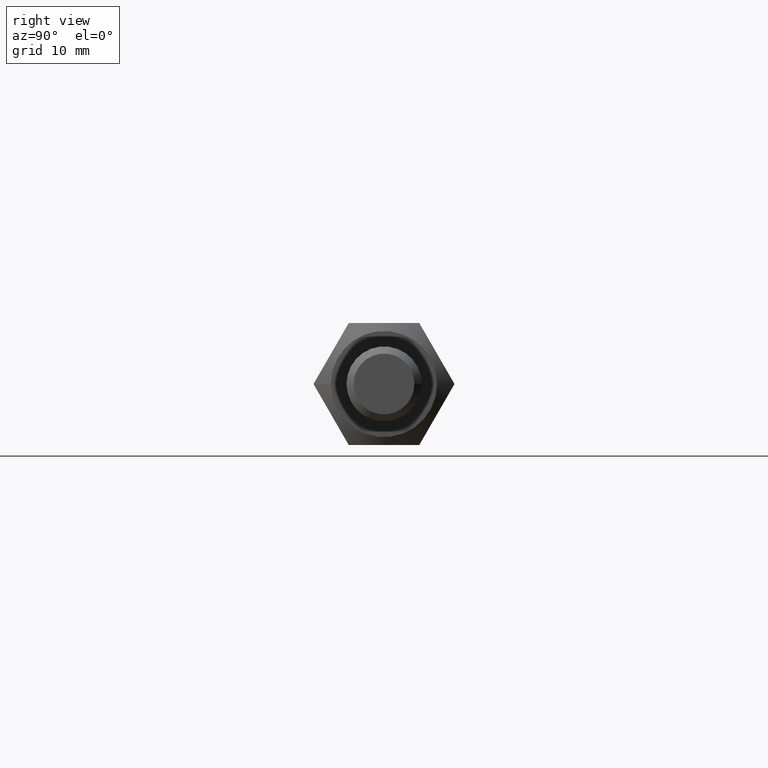
[diagram: clean part render]
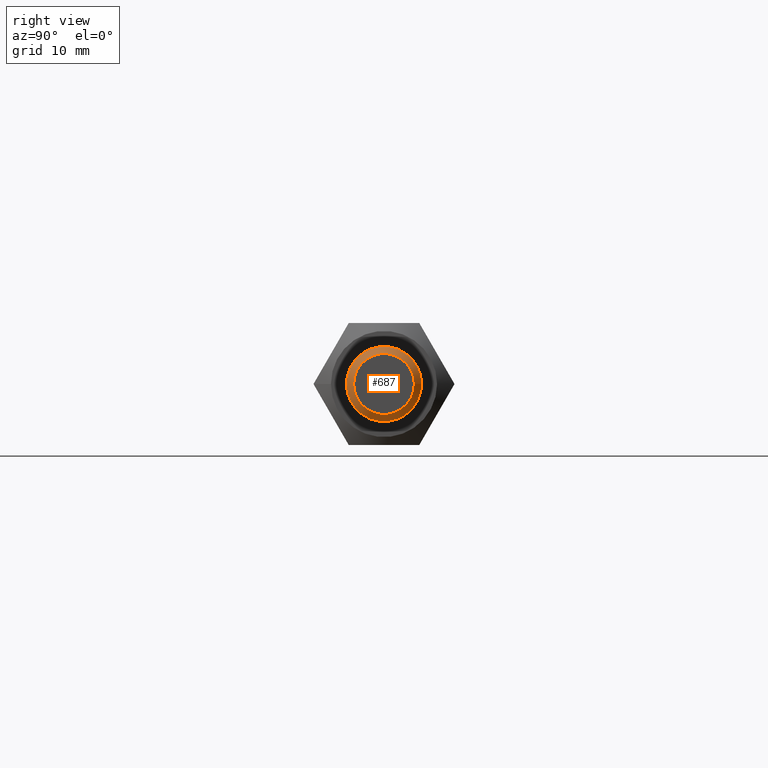
[diagram: same view with one face highlighted and labeled with its STEP entity id]
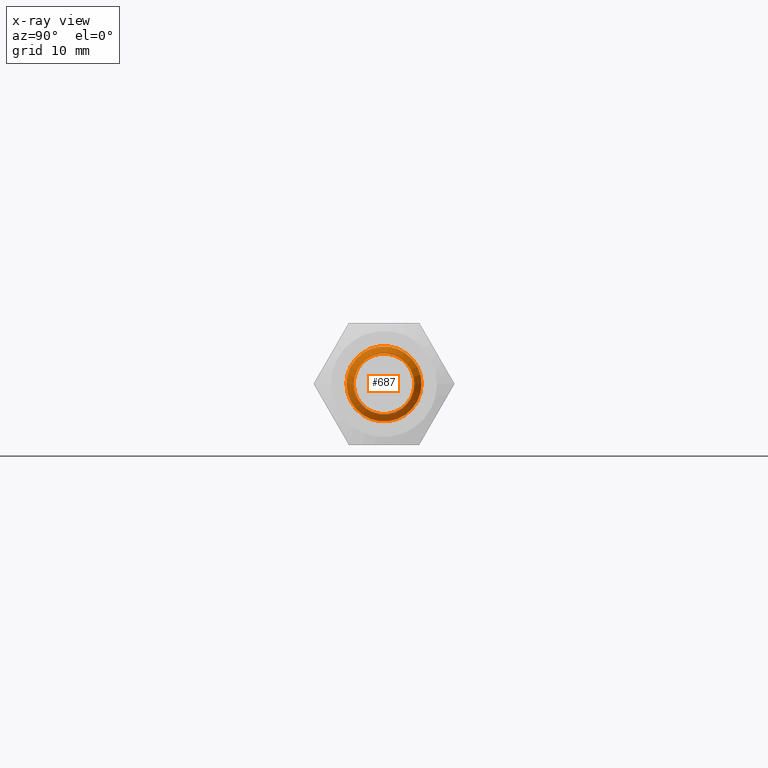
[diagram: x-ray of the same camera — body ghosted, the highlighted face saturated]
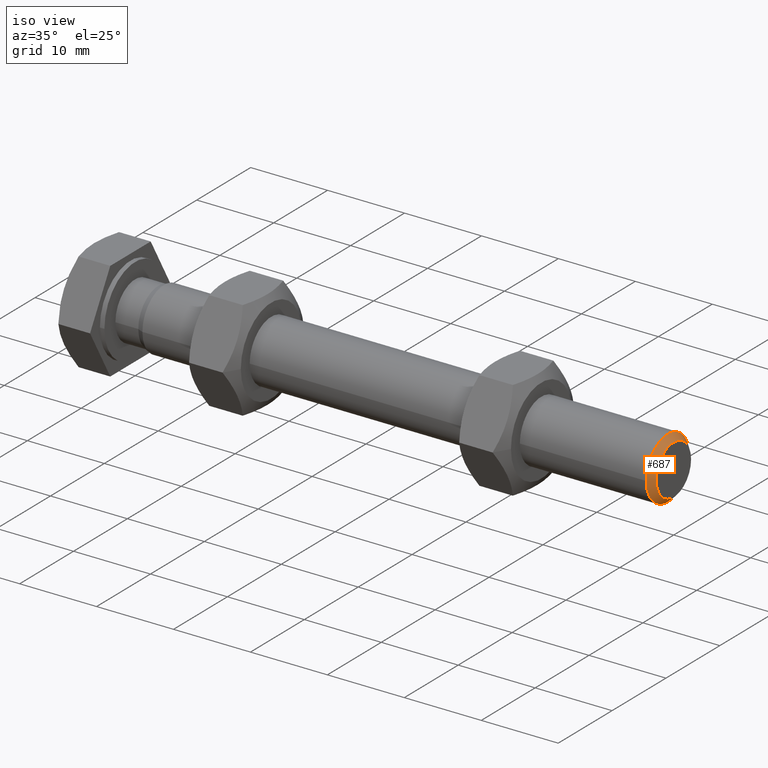
[diagram: same view with one face highlighted and labeled with its STEP entity id]
A machine part, right view. The second image highlights one B-rep face of the part: STEP entity #687.
The next image is the same camera in x-ray: the body ghosted, the highlighted face saturated — about 0% of this face is hidden behind the body in this view.
A second angle (iso view) of the same face is appended — the face is thin or edge-on in the first view.
In plain terms, the highlighted conical surface has half-angle 44.996 deg.
Its self-contained STEP definition (entity closure, byte-faithful):
#92=FACE_OUTER_BOUND('',#139,.T.);
#139=EDGE_LOOP('',(#465,#466,#467,#468,#469));
#192=LINE('',#1032,#231);
#231=VECTOR('',#842,3.61659375000001);
#270=CIRCLE('',#760,4.);
#271=CIRCLE('',#761,4.);
#272=CIRCLE('',#762,3.23318750000001);
#298=VERTEX_POINT('',#1027);
#299=VERTEX_POINT('',#1028);
#300=VERTEX_POINT('',#1031);
#362=EDGE_CURVE('',#298,#299,#270,.T.);
#363=EDGE_CURVE('',#299,#298,#271,.T.);
#364=EDGE_CURVE('',#298,#300,#192,.T.);
#365=EDGE_CURVE('',#300,#300,#272,.T.);
#465=ORIENTED_EDGE('',*,*,#362,.T.);
#466=ORIENTED_EDGE('',*,*,#363,.T.);
#467=ORIENTED_EDGE('',*,*,#364,.T.);
#468=ORIENTED_EDGE('',*,*,#365,.T.);
#469=ORIENTED_EDGE('',*,*,#364,.F.);
#671=CONICAL_SURFACE('',#759,3.61659375000001,0.785332962660772);
#687=ADVANCED_FACE('',(#92),#671,.T.);
#759=AXIS2_PLACEMENT_3D('',#1026,#836,#837);
#760=AXIS2_PLACEMENT_3D('',#1029,#838,#839);
#761=AXIS2_PLACEMENT_3D('',#1030,#840,#841);
#762=AXIS2_PLACEMENT_3D('',#1033,#843,#844);
#836=DIRECTION('center_axis',(-1.,-1.25804130546575E-16,0.));
#837=DIRECTION('ref_axis',(1.25804130546575E-16,-1.,0.));
#838=DIRECTION('center_axis',(1.,1.25804130546575E-16,0.));
#839=DIRECTION('ref_axis',(1.25804130546575E-16,-1.,0.));
#840=DIRECTION('center_axis',(1.,1.25804130546575E-16,0.));
#841=DIRECTION('ref_axis',(1.25804130546575E-16,-1.,0.));
#842=DIRECTION('',(0.707152883566554,-0.707060675800534,8.65899593422089E-17));
#843=DIRECTION('center_axis',(-1.,-1.25804130546575E-16,0.));
#844=DIRECTION('ref_axis',(1.25804130546575E-16,-1.,0.));
#1026=CARTESIAN_POINT('Origin',(69.61654375,6.61309776761704E-15,0.));
#1027=CARTESIAN_POINT('',(69.2330875,4.00000000000001,4.89858719658942E-16));
#1028=CARTESIAN_POINT('',(69.2330875,-3.99999999999999,-4.89858719658941E-16));
#1029=CARTESIAN_POINT('Origin',(69.2330875,6.56485738748314E-15,0.));
#1030=CARTESIAN_POINT('Origin',(69.2330875,6.56485738748314E-15,0.));
#1031=CARTESIAN_POINT('',(70.,3.23318750000001,-3.95951272291824E-16));
#1032=CARTESIAN_POINT('',(69.61654375,3.61659375000002,-4.42904995975384E-16));
#1033=CARTESIAN_POINT('Origin',(70.,6.66133814775094E-15,0.));